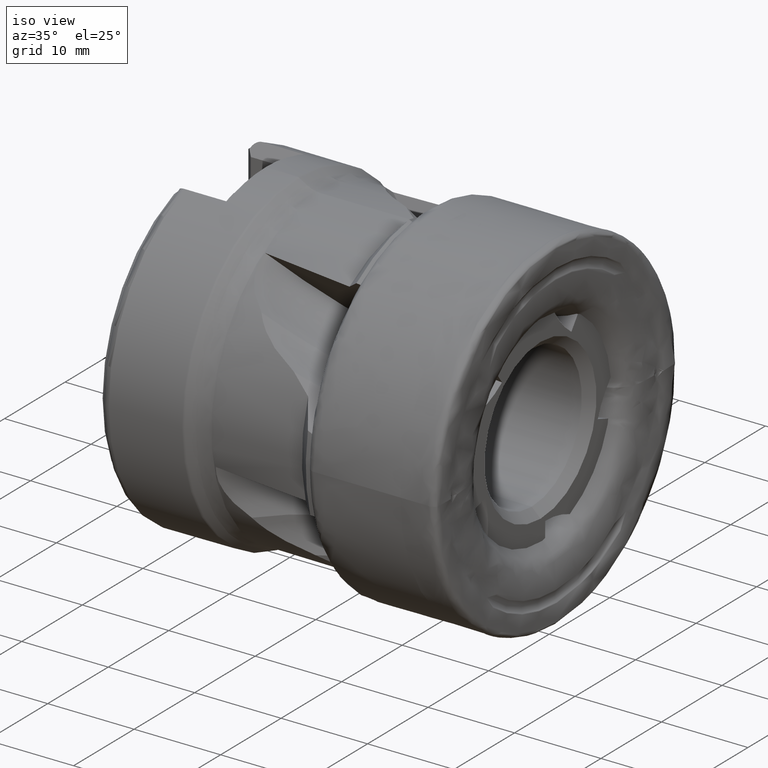
[diagram: clean part render]
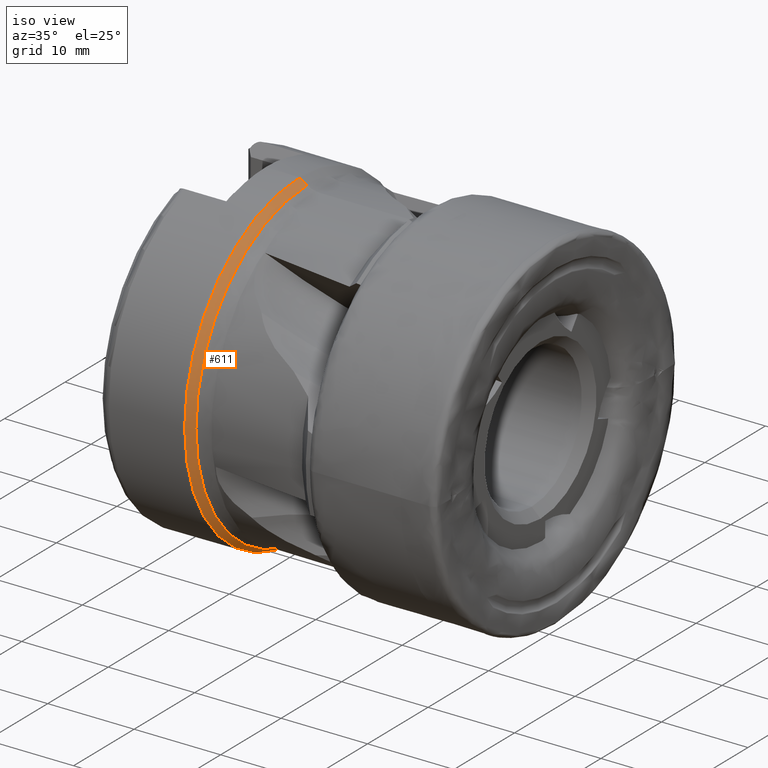
[diagram: same view with one face highlighted and labeled with its STEP entity id]
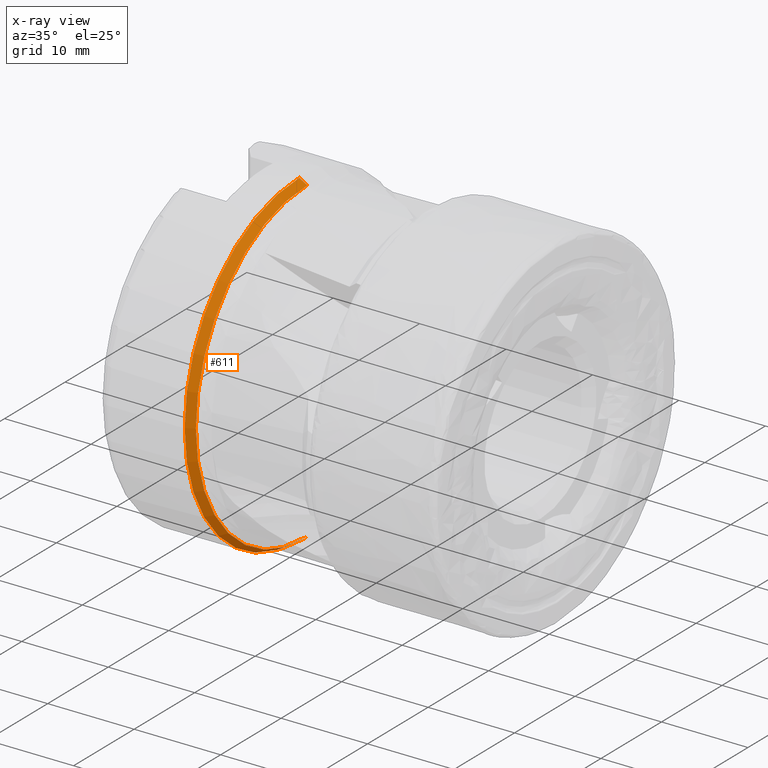
[diagram: x-ray of the same camera — body ghosted, the highlighted face saturated]
A machine part, iso view. The second image highlights one B-rep face of the part: STEP entity #611.
The next image is the same camera in x-ray: the body ghosted, the highlighted face saturated — about 1% of this face is hidden behind the body in this view.
In plain terms, the highlighted conical surface has half-angle 30 deg.
Its self-contained STEP definition (entity closure, byte-faithful):
#138 = VERTEX_POINT ( 'NONE', #5339 ) ;
#139 = VERTEX_POINT ( 'NONE', #5405 ) ;
#140 = VERTEX_POINT ( 'NONE', #5368 ) ;
#142 = VERTEX_POINT ( 'NONE', #5357 ) ;
#357 = ORIENTED_EDGE ( 'NONE', *, *, #6140, .F. ) ;
#358 = ORIENTED_EDGE ( 'NONE', *, *, #6146, .F. ) ;
#359 = ORIENTED_EDGE ( 'NONE', *, *, #5584, .T. ) ;
#360 = ORIENTED_EDGE ( 'NONE', *, *, #5634, .T. ) ;
#611 = ADVANCED_FACE ( 'NONE', ( #1446 ), #1450, .T. ) ;
#746 = AXIS2_PLACEMENT_3D ( 'NONE', #6363, #6382, #6349 ) ;
#898 = AXIS2_PLACEMENT_3D ( 'NONE', #4157, #4158, #4159 ) ;
#982 = AXIS2_PLACEMENT_3D ( 'NONE', #4926, #4927, #4928 ) ;
#1446 = FACE_OUTER_BOUND ( 'NONE', #6407, .T. ) ;
#1450 = CONICAL_SURFACE ( 'NONE', #746, 18.40192378864668800, 0.5235987755982942600 ) ;
#1887 = LINE ( 'NONE', #4090, #1888 ) ;
#1888 = VECTOR ( 'NONE', #4092, 1000.000000000000100 ) ;
#1908 = CIRCLE ( 'NONE', #898, 18.93301270189221700 ) ;
#2059 = LINE ( 'NONE', #4906, #2060 ) ;
#2060 = VECTOR ( 'NONE', #4907, 1000.000000000000100 ) ;
#2066 = CIRCLE ( 'NONE', #982, 18.40192378864668800 ) ;
#4090 = CARTESIAN_POINT ( 'NONE',  ( -27.98012701892218600, 0.0000000000000000000, 18.40192378864668800 ) ) ;
#4092 = DIRECTION ( 'NONE',  ( -0.8660254037844409300, 0.0000000000000000000, 0.4999999999999959500 ) ) ;
#4157 = CARTESIAN_POINT ( 'NONE',  ( -28.89999999999999500, 0.0000000000000000000, 0.0000000000000000000 ) ) ;
#4158 = DIRECTION ( 'NONE',  ( 1.000000000000000000, -0.0000000000000000000, -0.0000000000000000000 ) ) ;
#4159 = DIRECTION ( 'NONE',  ( 0.0000000000000000000, 0.0000000000000000000, -1.000000000000000000 ) ) ;
#4906 = CARTESIAN_POINT ( 'NONE',  ( -27.98012701892218600, 2.253585706591970200E-015, -18.40192378864668800 ) ) ;
#4907 = DIRECTION ( 'NONE',  ( -0.8660254037844409300, 6.123233995736716700E-017, -0.4999999999999959500 ) ) ;
#4926 = CARTESIAN_POINT ( 'NONE',  ( -27.98012701892218600, 0.0000000000000000000, 0.0000000000000000000 ) ) ;
#4927 = DIRECTION ( 'NONE',  ( 1.000000000000000000, -0.0000000000000000000, -0.0000000000000000000 ) ) ;
#4928 = DIRECTION ( 'NONE',  ( 0.0000000000000000000, 0.0000000000000000000, -1.000000000000000000 ) ) ;
#5339 = CARTESIAN_POINT ( 'NONE',  ( -28.89999999999999500, 0.0000000000000000000, -18.93301270189221700 ) ) ;
#5357 = CARTESIAN_POINT ( 'NONE',  ( -28.89999999999999500, 2.322727129369409700E-015, 18.93301270189221700 ) ) ;
#5368 = CARTESIAN_POINT ( 'NONE',  ( -27.98012701892218600, 2.286105523475409200E-015, -18.40192378864668800 ) ) ;
#5405 = CARTESIAN_POINT ( 'NONE',  ( -27.98012701892218600, 0.0000000000000000000, 18.40192378864668800 ) ) ;
#5584 = EDGE_CURVE ( 'NONE', #139, #142, #1887, .T. ) ;
#5634 = EDGE_CURVE ( 'NONE', #142, #138, #1908, .T. ) ;
#6140 = EDGE_CURVE ( 'NONE', #140, #138, #2059, .T. ) ;
#6146 = EDGE_CURVE ( 'NONE', #139, #140, #2066, .T. ) ;
#6349 = DIRECTION ( 'NONE',  ( 0.0000000000000000000, 0.0000000000000000000, 1.000000000000000000 ) ) ;
#6363 = CARTESIAN_POINT ( 'NONE',  ( -27.98012701892218600, 0.0000000000000000000, 0.0000000000000000000 ) ) ;
#6382 = DIRECTION ( 'NONE',  ( -1.000000000000000000, 0.0000000000000000000, 0.0000000000000000000 ) ) ;
#6407 = EDGE_LOOP ( 'NONE', ( #357, #358, #359, #360 ) ) ;